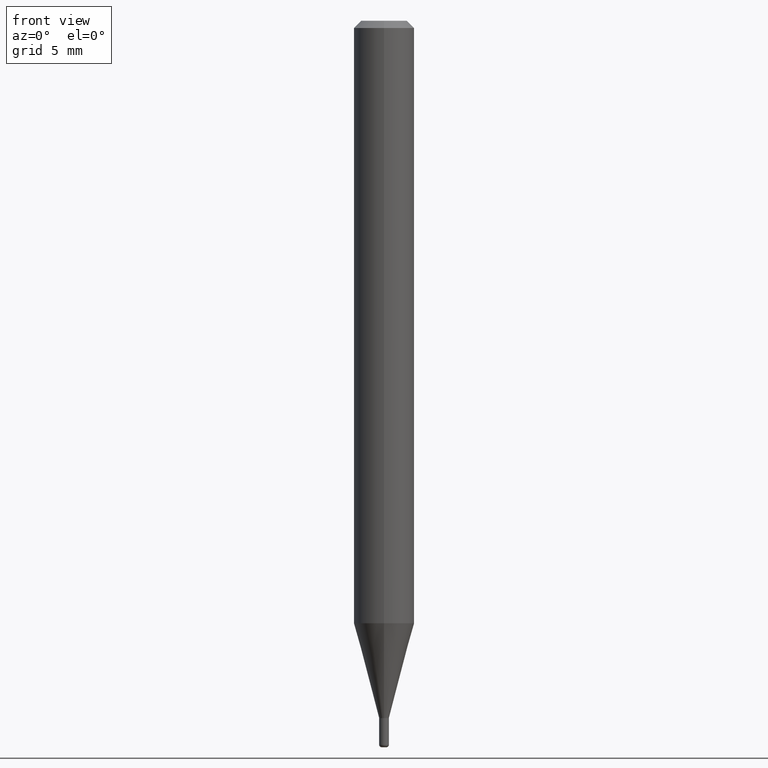
[diagram: clean part render]
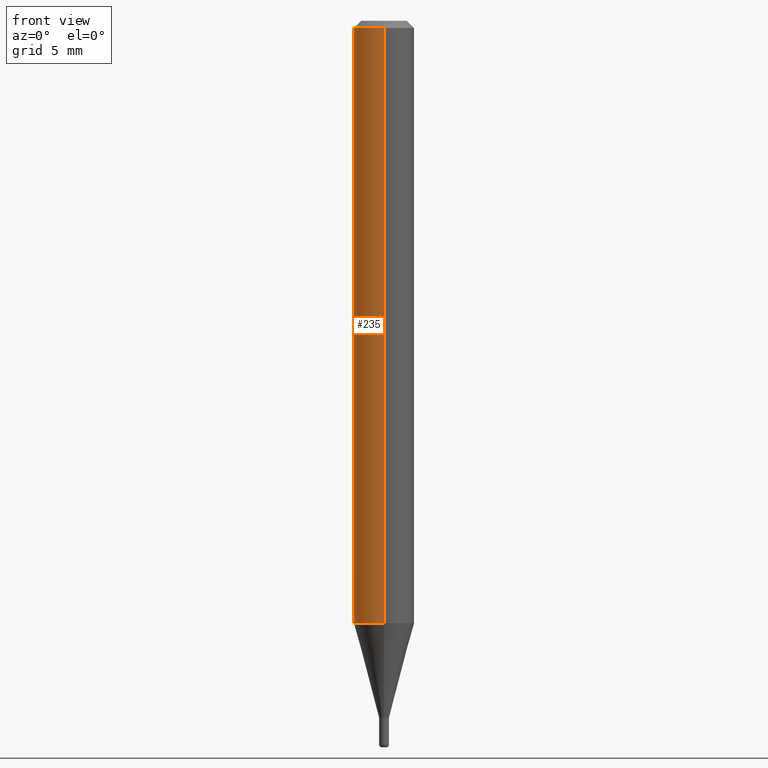
[diagram: same view with one face highlighted and labeled with its STEP entity id]
A machine part, front view. The second image highlights one B-rep face of the part: STEP entity #235.
In plain terms, the highlighted cylindrical surface (edge-blend (fillet) strip) has radius 1.5875 mm, axis along (-0, 0, 1).
Its self-contained STEP definition (entity closure, byte-faithful):
#21 = EDGE_CURVE ( 'NONE', #220, #316, #312, .T. ) ;
#30 = CARTESIAN_POINT ( 'NONE',  ( 4.440892098500625669E-16, 0.06250000000000000000, -2.182265765610561363E-16 ) ) ;
#45 = VECTOR ( 'NONE', #452, 39.37007874015748143 ) ;
#89 = AXIS2_PLACEMENT_3D ( 'NONE', #159, #433, #163 ) ;
#95 = CARTESIAN_POINT ( 'NONE',  ( -4.364351673553916201E-16, -0.06250000000000000000, 2.182265765610561363E-16 ) ) ;
#115 = VECTOR ( 'NONE', #268, 39.37007874015748143 ) ;
#155 = ORIENTED_EDGE ( 'NONE', *, *, #464, .T. ) ;
#158 = AXIS2_PLACEMENT_3D ( 'NONE', #286, #362, #166 ) ;
#159 = CARTESIAN_POINT ( 'NONE',  ( 0.000000000000000000, 0.000000000000000000, 0.000000000000000000 ) ) ;
#163 = DIRECTION ( 'NONE',  ( -6.982962677686265922E-15, -1.000000000000000000, 3.491625224976898181E-15 ) ) ;
#164 = VERTEX_POINT ( 'NONE', #426 ) ;
#166 = DIRECTION ( 'NONE',  ( -6.982962677686265922E-15, -1.000000000000000000, 3.483106191921935554E-15 ) ) ;
#167 = VERTEX_POINT ( 'NONE', #391 ) ;
#172 = CARTESIAN_POINT ( 'NONE',  ( -4.364351673553612490E-16, -0.06250000000000435763, -1.244067332602634579 ) ) ;
#200 = CYLINDRICAL_SURFACE ( 'NONE', #89, 0.06250000000000000000 ) ;
#203 = CARTESIAN_POINT ( 'NONE',  ( 4.440892098500928887E-16, 0.06249999999999564237, -1.244067332602635023 ) ) ;
#220 = VERTEX_POINT ( 'NONE', #203 ) ;
#235 = ADVANCED_FACE ( 'NONE', ( #238 ), #200, .T. ) ;
#238 = FACE_OUTER_BOUND ( 'NONE', #336, .T. ) ;
#254 = ORIENTED_EDGE ( 'NONE', *, *, #21, .T. ) ;
#268 = DIRECTION ( 'NONE',  ( -2.445368331034953717E-29, 3.491625224976897786E-15, 1.000000000000000000 ) ) ;
#286 = CARTESIAN_POINT ( 'NONE',  ( 3.668052496552491514E-31, -5.237437837465434366E-17, -0.01500000000000024925 ) ) ;
#288 = ORIENTED_EDGE ( 'NONE', *, *, #342, .F. ) ;
#300 = EDGE_CURVE ( 'NONE', #220, #167, #473, .T. ) ;
#312 = CIRCLE ( 'NONE', #379, 0.06250000000000000000 ) ;
#316 = VERTEX_POINT ( 'NONE', #172 ) ;
#336 = EDGE_LOOP ( 'NONE', ( #359, #254, #155, #288 ) ) ;
#337 = LINE ( 'NONE', #95, #45 ) ;
#342 = EDGE_CURVE ( 'NONE', #167, #164, #506, .T. ) ;
#359 = ORIENTED_EDGE ( 'NONE', *, *, #300, .F. ) ;
#362 = DIRECTION ( 'NONE',  ( -2.445368331034953437E-29, 3.491625224976898181E-15, 1.000000000000000000 ) ) ;
#379 = AXIS2_PLACEMENT_3D ( 'NONE', #510, #458, #507 ) ;
#391 = CARTESIAN_POINT ( 'NONE',  ( 4.440892098500932831E-16, 0.06249999999999995143, -0.01500000000000046782 ) ) ;
#426 = CARTESIAN_POINT ( 'NONE',  ( -4.364351673553912750E-16, -0.06250000000000005551, -0.01500000000000003240 ) ) ;
#433 = DIRECTION ( 'NONE',  ( -2.445368331034953437E-29, 3.491625224976898181E-15, 1.000000000000000000 ) ) ;
#452 = DIRECTION ( 'NONE',  ( -2.445368331034953717E-29, 3.491625224976897786E-15, 1.000000000000000000 ) ) ;
#458 = DIRECTION ( 'NONE',  ( -2.445368331034953437E-29, 3.491625224976898181E-15, 1.000000000000000000 ) ) ;
#464 = EDGE_CURVE ( 'NONE', #316, #164, #337, .T. ) ;
#473 = LINE ( 'NONE', #30, #115 ) ;
#506 = CIRCLE ( 'NONE', #158, 0.06250000000000000000 ) ;
#507 = DIRECTION ( 'NONE',  ( -6.982962677686265922E-15, -1.000000000000000000, 4.370956789862821150E-15 ) ) ;
#510 = CARTESIAN_POINT ( 'NONE',  ( 3.042202856821611615E-29, -4.343816880085084386E-15, -1.244067332602634801 ) ) ;